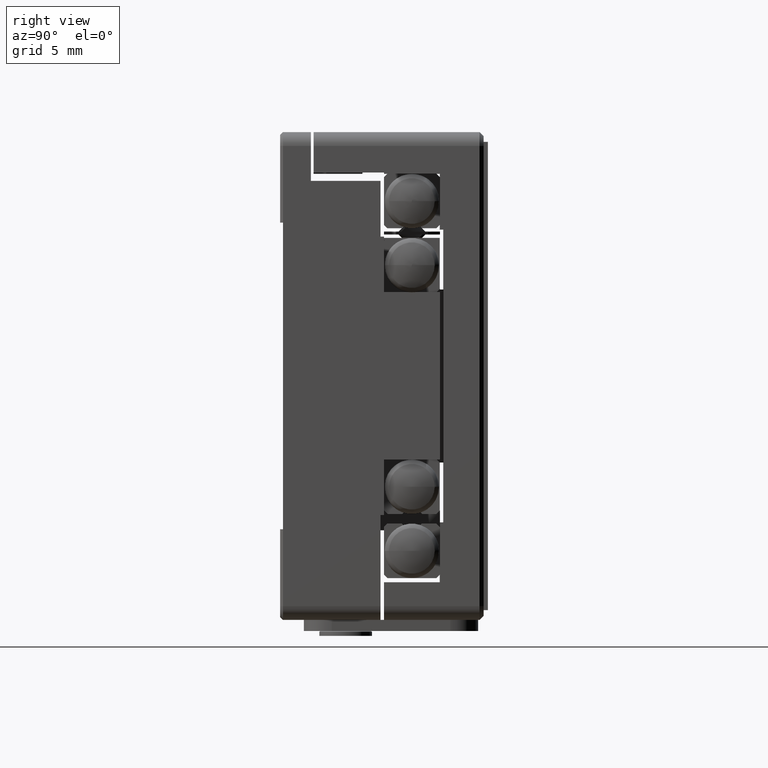
[diagram: clean part render]
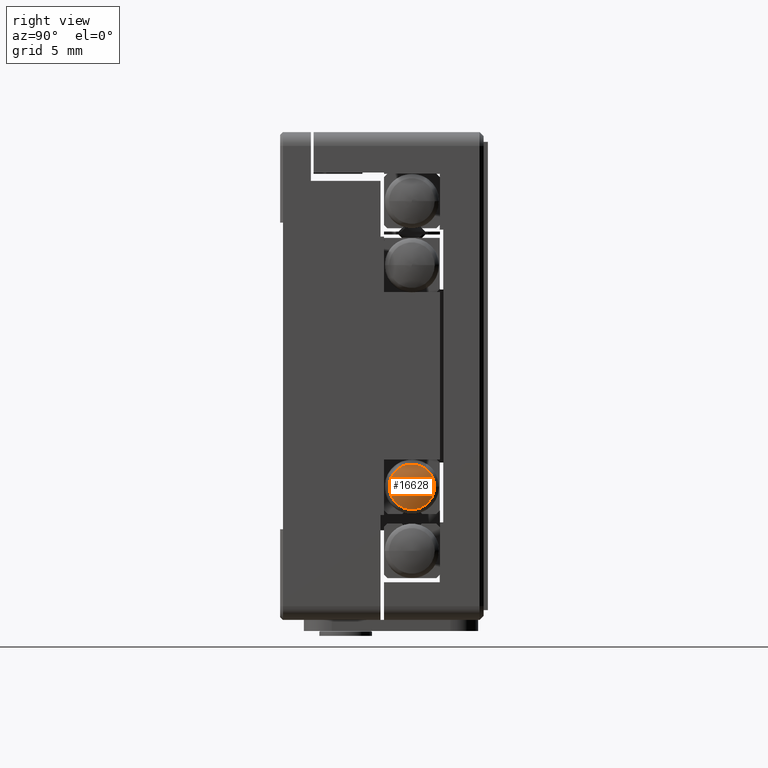
[diagram: same view with one face highlighted and labeled with its STEP entity id]
A machine part, right view. The second image highlights one B-rep face of the part: STEP entity #16628.
In plain terms, the highlighted toroidal blend (fillet) surface has major radius 0.1469 mm and minor (blend) radius 4.8 mm.
Its self-contained STEP definition (entity closure, byte-faithful):
#293 = CARTESIAN_POINT ( 'NONE',  ( 32.85896886049417986, -2.299999999999757350, 1.635686979654954021 ) ) ;
#1653 = EDGE_CURVE ( 'NONE', #19663, #19663, #18872, .T. ) ;
#2240 = DIRECTION ( 'NONE',  ( 0.000000000000000000, 0.000000000000000000, -1.000000000000000000 ) ) ;
#2456 = AXIS2_PLACEMENT_3D ( 'NONE', #15285, #16949, #2240 ) ;
#2645 = FACE_OUTER_BOUND ( 'NONE', #20379, .T. ) ;
#8776 = TOROIDAL_SURFACE ( 'NONE', #2456, -0.1469080250525203468, 4.800000000121089627 ) ;
#10821 = DIRECTION ( 'NONE',  ( -1.000000000000000000, -0.000000000000000000, 0.000000000000000000 ) ) ;
#12126 = AXIS2_PLACEMENT_3D ( 'NONE', #16900, #10821, #20171 ) ;
#15285 = CARTESIAN_POINT ( 'NONE',  ( 28.40224864823899509, -2.299999999999796430, -1.734723475976807094E-15 ) ) ;
#16628 = ADVANCED_FACE ( 'NONE', ( #2645 ), #8776, .T. ) ;
#16850 = ORIENTED_EDGE ( 'NONE', *, *, #1653, .F. ) ;
#16900 = CARTESIAN_POINT ( 'NONE',  ( 32.85896886049417986, -2.299999999999757350, 0.000000000000000000 ) ) ;
#16949 = DIRECTION ( 'NONE',  ( 1.000000000000000000, 0.000000000000000000, 0.000000000000000000 ) ) ;
#18872 = CIRCLE ( 'NONE', #12126, 1.635686979654954021 ) ;
#19663 = VERTEX_POINT ( 'NONE', #293 ) ;
#20171 = DIRECTION ( 'NONE',  ( 0.000000000000000000, 0.000000000000000000, 1.000000000000000000 ) ) ;
#20379 = EDGE_LOOP ( 'NONE', ( #16850 ) ) ;